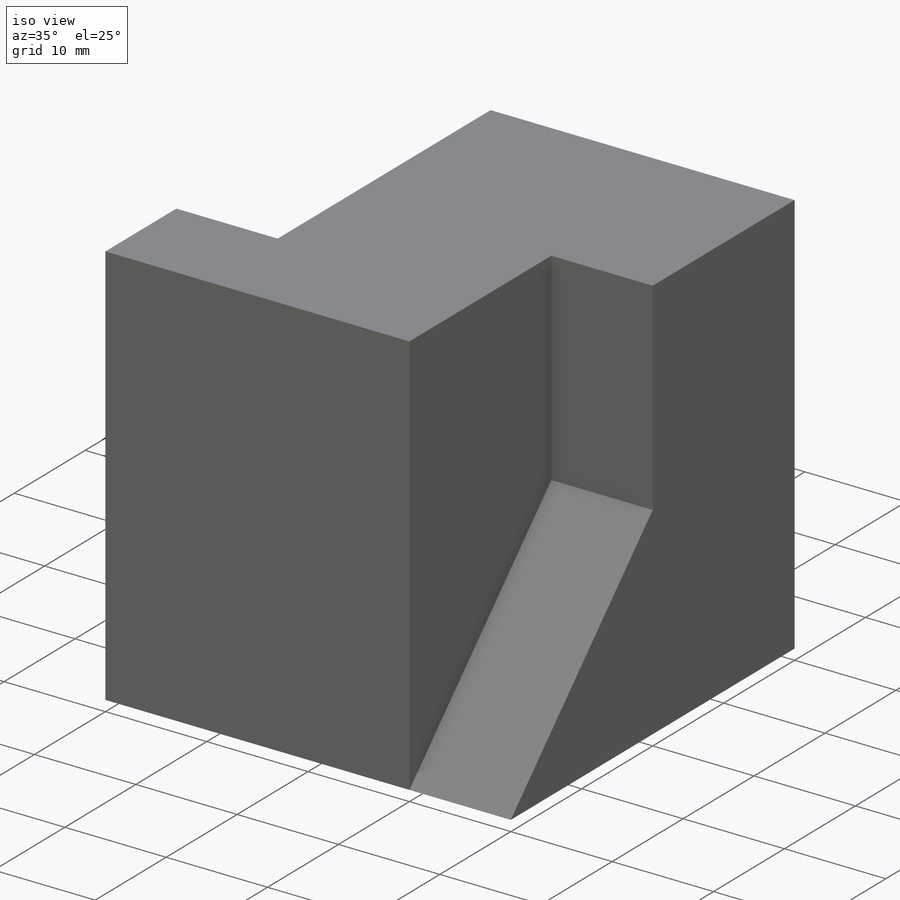
[diagram: iso view]
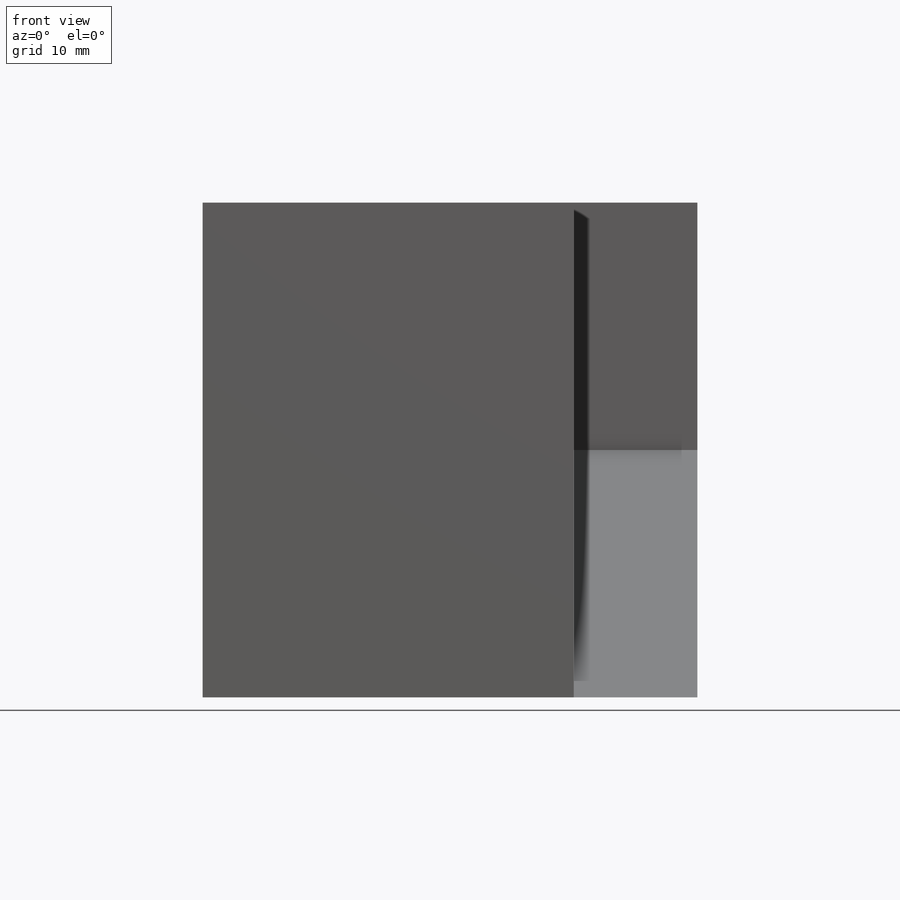
[diagram: front view]
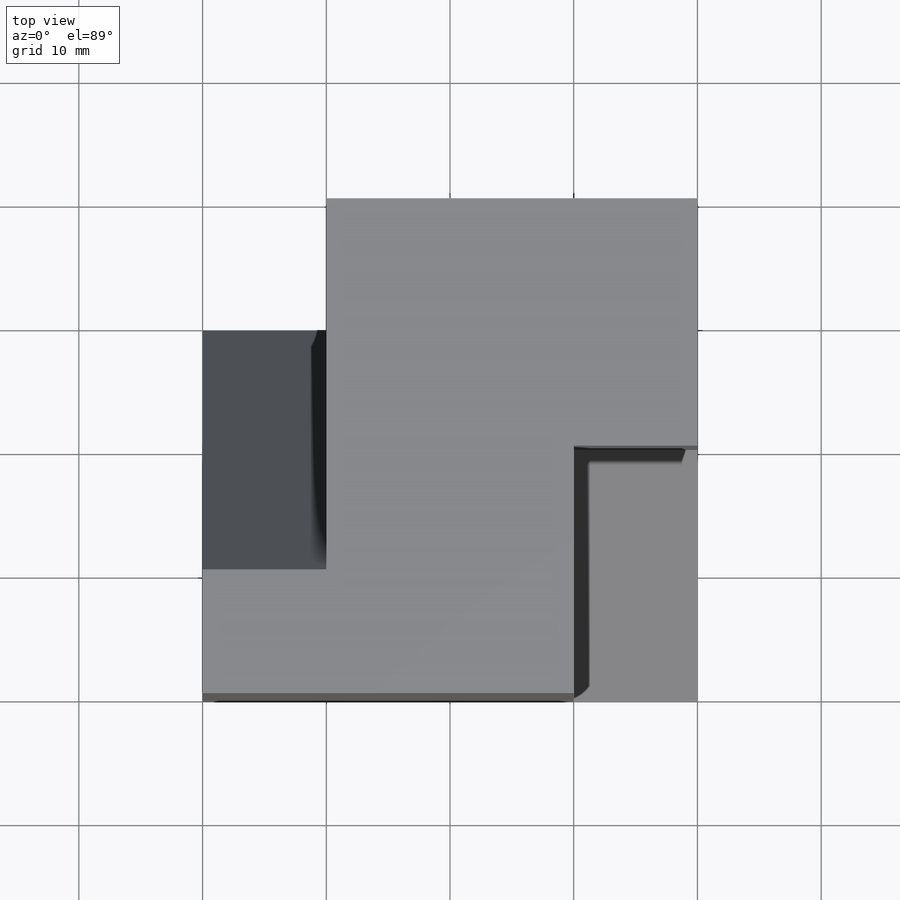
[diagram: top view]
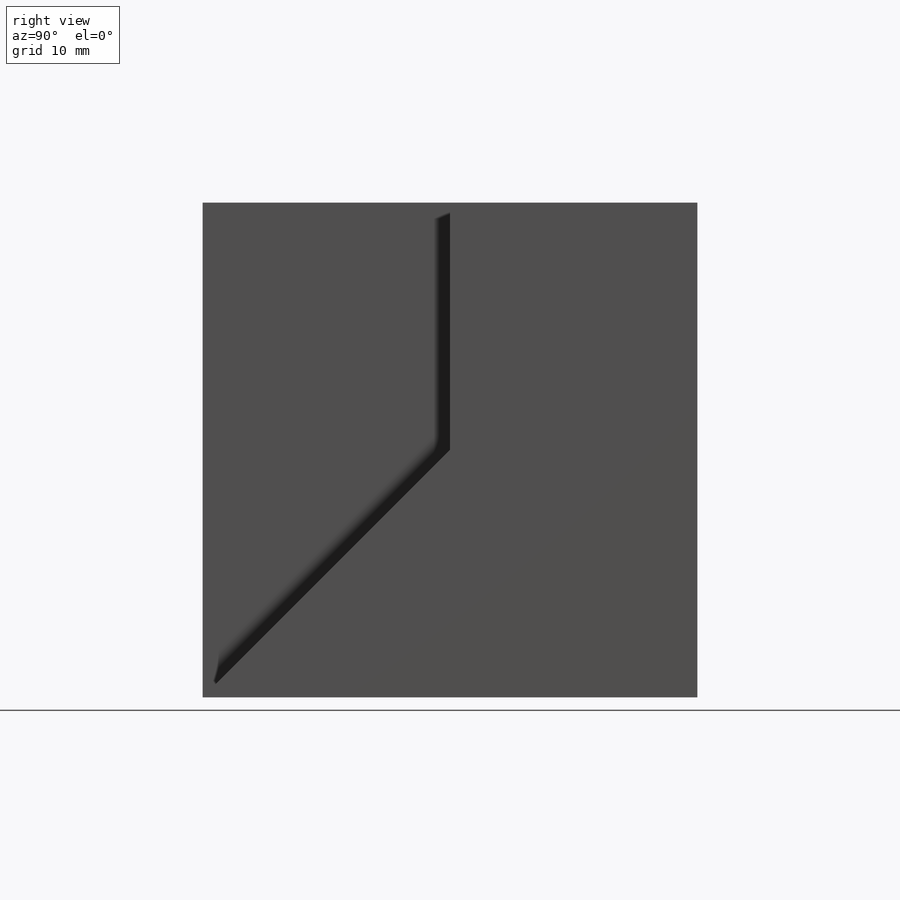
[diagram: right view]
SOLIDWORKS PART (.sldprt)
format: sldprt  version: not decoded by parser v0  size: 215,552 bytes
history: native  units: mm
features: sketch x9, cut_extrude x6, extrude x3, material x1 (+13 scaffold rows collapsed)
feature tree (32):
  scaffold x13  (default folders/planes/origin — collapsed)
  material  "Material <not specified>"
  sketch  "Sketch1"  dims[c1.D1=~56.242139mm c1.D2=~66.119791mm c2.D1=40.0mm c2.D2=40.0mm]
  extrude  "Boss-Extrude1"  Depth=40mm
  sketch  "Sketch2"  dims[c1.D1=~11.067504mm c1.D2=~8.155432mm c2.D1=10.0mm c2.D2=10.0mm]
  cut_extrude  "Cut-Extrude1"  Depth=40mm
  sketch  "Sketch6"  dims[c1.D1=~20.981228mm c1.D2=~11.288486mm c2.D1=~19.018772mm c2.D2=~11.288486mm c3.D1=10.0mm c3.D2=20.0mm]
  cut_extrude  "Cut-Extrude4"  Depth=20mm
  sketch  "Sketch7"  dims[D1=20.0mm D2=10.0mm]
  cut_extrude  "Cut-Extrude5"  Depth=10mm
  sketch  "Sketch12"  dims[c1.D1=20.5266mm c1.D2=~10.028986mm c2.D1=10.0mm c2.D2=20.0mm]
  cut_extrude  "Cut-Extrude11"  Depth=10mm
  sketch  "Sketch13"  dims[D1=20.0mm]
  extrude  "Boss-Extrude4"  Depth=10mm
  sketch  "Sketch15"  dims[D1=20.0mm]
  cut_extrude  "Cut-Extrude12"  Depth=10mm
  sketch  "Sketch16"  dims[D1=10.0mm]
  extrude  "Boss-Extrude5"  Depth=10mm
  sketch  "Sketch17"  dims[D1=15.0mm]
  cut_extrude  "Cut-Extrude15"  Depth=10mm
decode coverage: 18 of 18 modeling features carry decoded parameters
note: ~ marks probable driven/reference dimensions
note: suppression state not decoded; provenance and decode notes live in map.json
